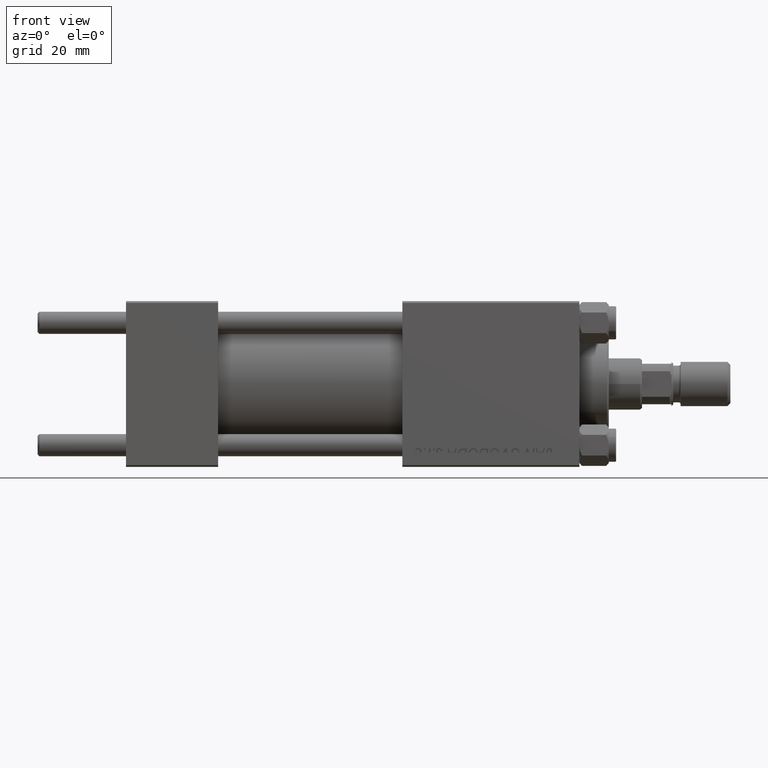
[diagram: clean part render]
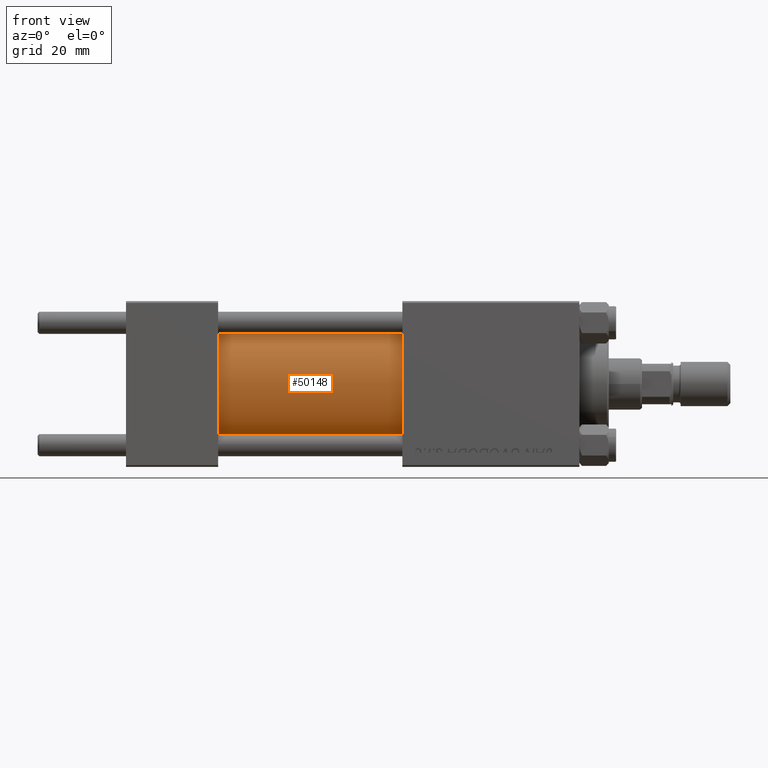
[diagram: same view with one face highlighted and labeled with its STEP entity id]
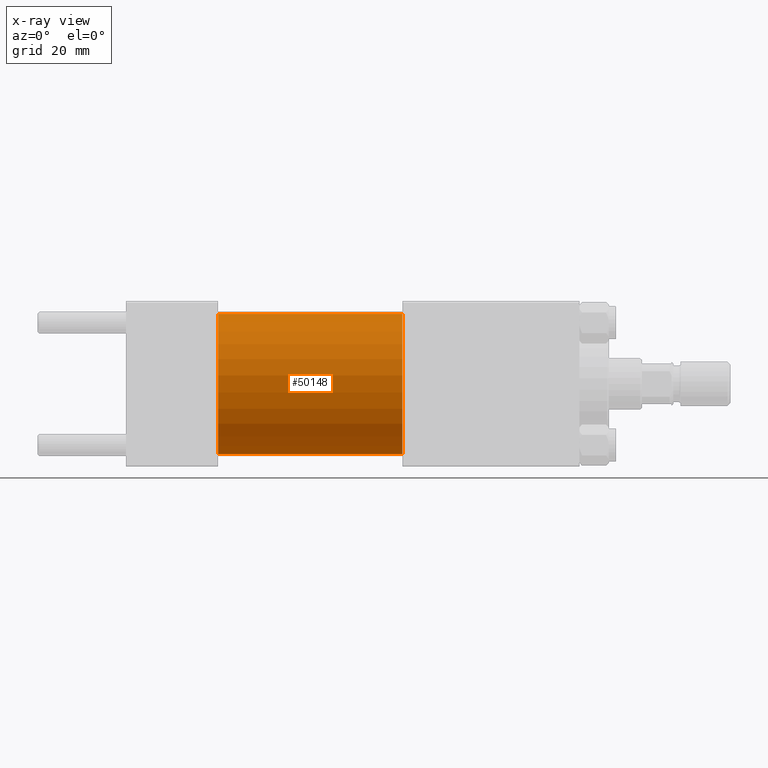
[diagram: x-ray of the same camera — body ghosted, the highlighted face saturated]
A machine part, front view. The second image highlights one B-rep face of the part: STEP entity #50148.
The next image is the same camera in x-ray: the body ghosted, the highlighted face saturated — about 0% of this face is hidden behind the body in this view.
In plain terms, the highlighted cylindrical surface (partial cylindrical patch) has radius 19 mm, axis along (-1, -0, -0).
Its self-contained STEP definition (entity closure, byte-faithful):
#1369 = DIRECTION ( 'NONE',  ( 0.000000000000000000, 0.000000000000000000, -1.000000000000000000 ) ) ;
#1534 = VECTOR ( 'NONE', #25332, 1000.000000000000000 ) ;
#2694 = CARTESIAN_POINT ( 'NONE',  ( 25.00000000000000000, 0.000000000000000000, 19.00000000000000000 ) ) ;
#3763 = CIRCLE ( 'NONE', #32194, 19.00000000000000000 ) ;
#6791 = VERTEX_POINT ( 'NONE', #15660 ) ;
#7607 = CARTESIAN_POINT ( 'NONE',  ( 75.00000000000001421, 0.000000000000000000, 19.00000000000000000 ) ) ;
#9240 = ORIENTED_EDGE ( 'NONE', *, *, #30414, .F. ) ;
#10887 = EDGE_LOOP ( 'NONE', ( #11478, #9240, #19903, #41181 ) ) ;
#11478 = ORIENTED_EDGE ( 'NONE', *, *, #36031, .F. ) ;
#15471 = EDGE_CURVE ( 'NONE', #39261, #29069, #43196, .T. ) ;
#15660 = CARTESIAN_POINT ( 'NONE',  ( 75.00000000000001421, 0.000000000000000000, 19.00000000000000000 ) ) ;
#18645 = DIRECTION ( 'NONE',  ( 0.000000000000000000, 0.000000000000000000, 1.000000000000000000 ) ) ;
#18690 = LINE ( 'NONE', #48501, #1534 ) ;
#19903 = ORIENTED_EDGE ( 'NONE', *, *, #31060, .T. ) ;
#20678 = DIRECTION ( 'NONE',  ( 1.000000000000000000, 0.000000000000000000, 0.000000000000000000 ) ) ;
#21615 = VECTOR ( 'NONE', #49321, 1000.000000000000000 ) ;
#22058 = AXIS2_PLACEMENT_3D ( 'NONE', #38245, #26519, #18645 ) ;
#22357 = CARTESIAN_POINT ( 'NONE',  ( 75.00000000000001421, 2.326828918379970970E-15, -19.00000000000000000 ) ) ;
#24332 = CARTESIAN_POINT ( 'NONE',  ( 25.00000000000000000, 2.326828918379970970E-15, -19.00000000000000000 ) ) ;
#24425 = AXIS2_PLACEMENT_3D ( 'NONE', #33746, #49049, #34260 ) ;
#24737 = CARTESIAN_POINT ( 'NONE',  ( 75.00000000000001421, 0.000000000000000000, 0.000000000000000000 ) ) ;
#25332 = DIRECTION ( 'NONE',  ( -1.000000000000000000, -0.000000000000000000, -0.000000000000000000 ) ) ;
#26519 = DIRECTION ( 'NONE',  ( 1.000000000000000000, -0.000000000000000000, 0.000000000000000000 ) ) ;
#26625 = FACE_OUTER_BOUND ( 'NONE', #10887, .T. ) ;
#29069 = VERTEX_POINT ( 'NONE', #24332 ) ;
#30414 = EDGE_CURVE ( 'NONE', #6791, #44944, #3763, .T. ) ;
#31060 = EDGE_CURVE ( 'NONE', #6791, #39261, #42714, .T. ) ;
#32194 = AXIS2_PLACEMENT_3D ( 'NONE', #24737, #20678, #1369 ) ;
#33746 = CARTESIAN_POINT ( 'NONE',  ( 75.00000000000001421, 0.000000000000000000, 0.000000000000000000 ) ) ;
#34004 = CYLINDRICAL_SURFACE ( 'NONE', #24425, 19.00000000000000000 ) ;
#34260 = DIRECTION ( 'NONE',  ( 0.000000000000000000, 0.000000000000000000, 1.000000000000000000 ) ) ;
#36031 = EDGE_CURVE ( 'NONE', #44944, #29069, #18690, .T. ) ;
#38245 = CARTESIAN_POINT ( 'NONE',  ( 25.00000000000000000, 0.000000000000000000, 0.000000000000000000 ) ) ;
#39261 = VERTEX_POINT ( 'NONE', #2694 ) ;
#41181 = ORIENTED_EDGE ( 'NONE', *, *, #15471, .T. ) ;
#42714 = LINE ( 'NONE', #7607, #21615 ) ;
#43196 = CIRCLE ( 'NONE', #22058, 19.00000000000000000 ) ;
#44944 = VERTEX_POINT ( 'NONE', #22357 ) ;
#48501 = CARTESIAN_POINT ( 'NONE',  ( 75.00000000000001421, 2.326828918379970970E-15, -19.00000000000000000 ) ) ;
#49049 = DIRECTION ( 'NONE',  ( -1.000000000000000000, -0.000000000000000000, -0.000000000000000000 ) ) ;
#49321 = DIRECTION ( 'NONE',  ( -1.000000000000000000, -0.000000000000000000, -0.000000000000000000 ) ) ;
#50148 = ADVANCED_FACE ( 'NONE', ( #26625 ), #34004, .T. ) ;